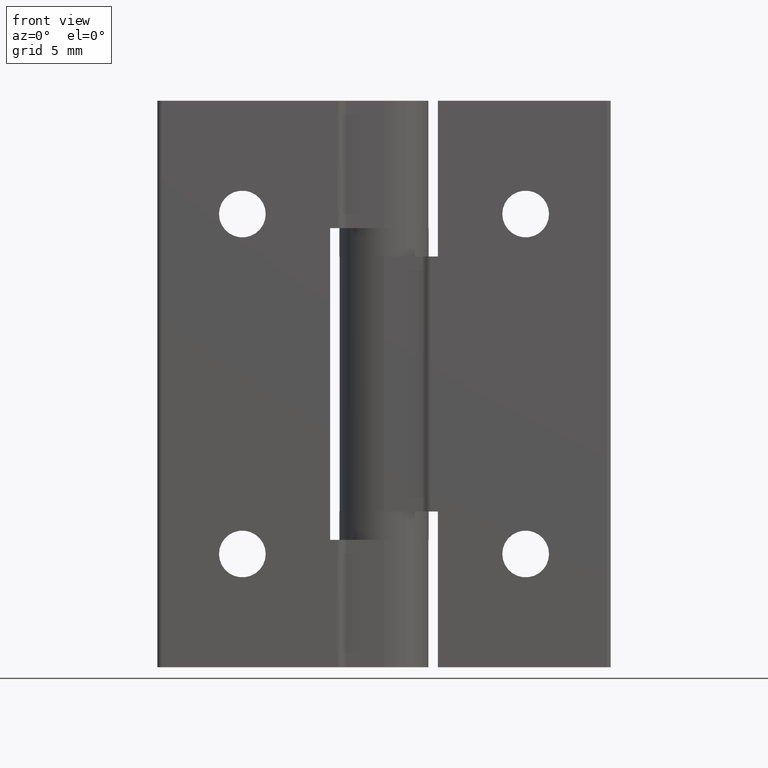
[diagram: clean part render]
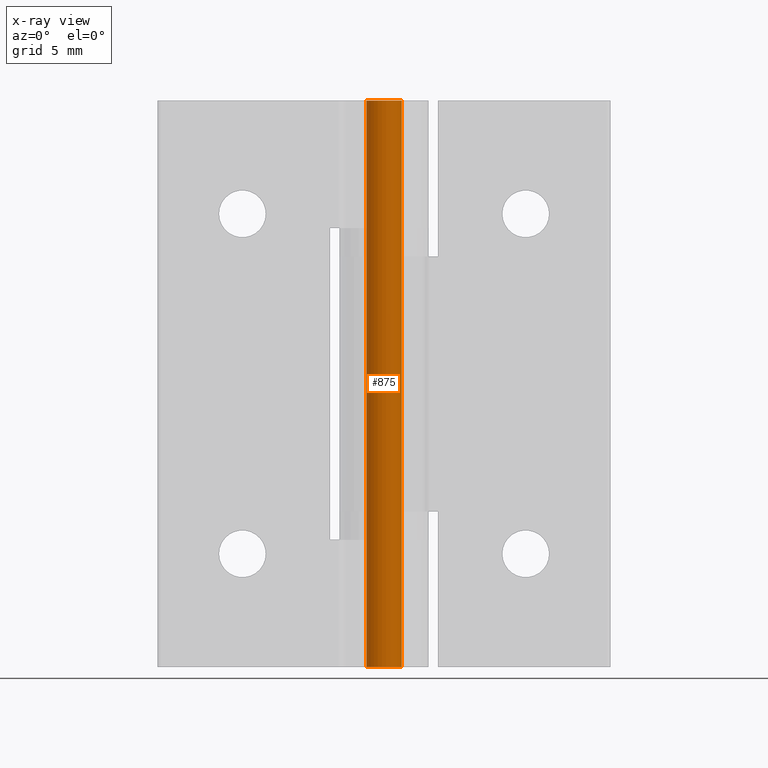
[diagram: x-ray — body ghosted, one internal face saturated and labeled with its STEP entity id]
A machine part, front view, then the same camera in x-ray: the body is ghosted and one INTERNAL B-rep face — a face not visible from any outside direction — is saturated and labeled: STEP entity #875.
In plain terms, the highlighted cylindrical surface (bore or boss wall) has radius 1.25 mm, axis along (0, 0, -1).
Its self-contained STEP definition (entity closure, byte-faithful):
#65=CYLINDRICAL_SURFACE('',#963,1.25);
#92=FACE_BOUND('',#252,.T.);
#134=CIRCLE('',#964,1.25);
#135=CIRCLE('',#965,1.25);
#182=FACE_OUTER_BOUND('',#251,.T.);
#251=EDGE_LOOP('',(#725));
#252=EDGE_LOOP('',(#726));
#454=VERTEX_POINT('',#1436);
#455=VERTEX_POINT('',#1438);
#552=EDGE_CURVE('',#454,#454,#134,.T.);
#553=EDGE_CURVE('',#455,#455,#135,.T.);
#725=ORIENTED_EDGE('',*,*,#552,.F.);
#726=ORIENTED_EDGE('',*,*,#553,.T.);
#875=ADVANCED_FACE('',(#182,#92),#65,.T.);
#963=AXIS2_PLACEMENT_3D('',#1435,#1167,#1168);
#964=AXIS2_PLACEMENT_3D('',#1437,#1169,#1170);
#965=AXIS2_PLACEMENT_3D('',#1439,#1171,#1172);
#1167=DIRECTION('center_axis',(0.,0.,-1.));
#1168=DIRECTION('ref_axis',(-1.,0.,0.));
#1169=DIRECTION('center_axis',(0.,0.,-1.));
#1170=DIRECTION('ref_axis',(-1.,0.,0.));
#1171=DIRECTION('center_axis',(0.,0.,-1.));
#1172=DIRECTION('ref_axis',(-1.,0.,0.));
#1435=CARTESIAN_POINT('Origin',(0.,0.,0.));
#1436=CARTESIAN_POINT('',(1.25,1.53080849893419E-16,-40.));
#1437=CARTESIAN_POINT('Origin',(0.,0.,-40.));
#1438=CARTESIAN_POINT('',(1.25,1.53080849893419E-16,0.));
#1439=CARTESIAN_POINT('Origin',(0.,0.,0.));